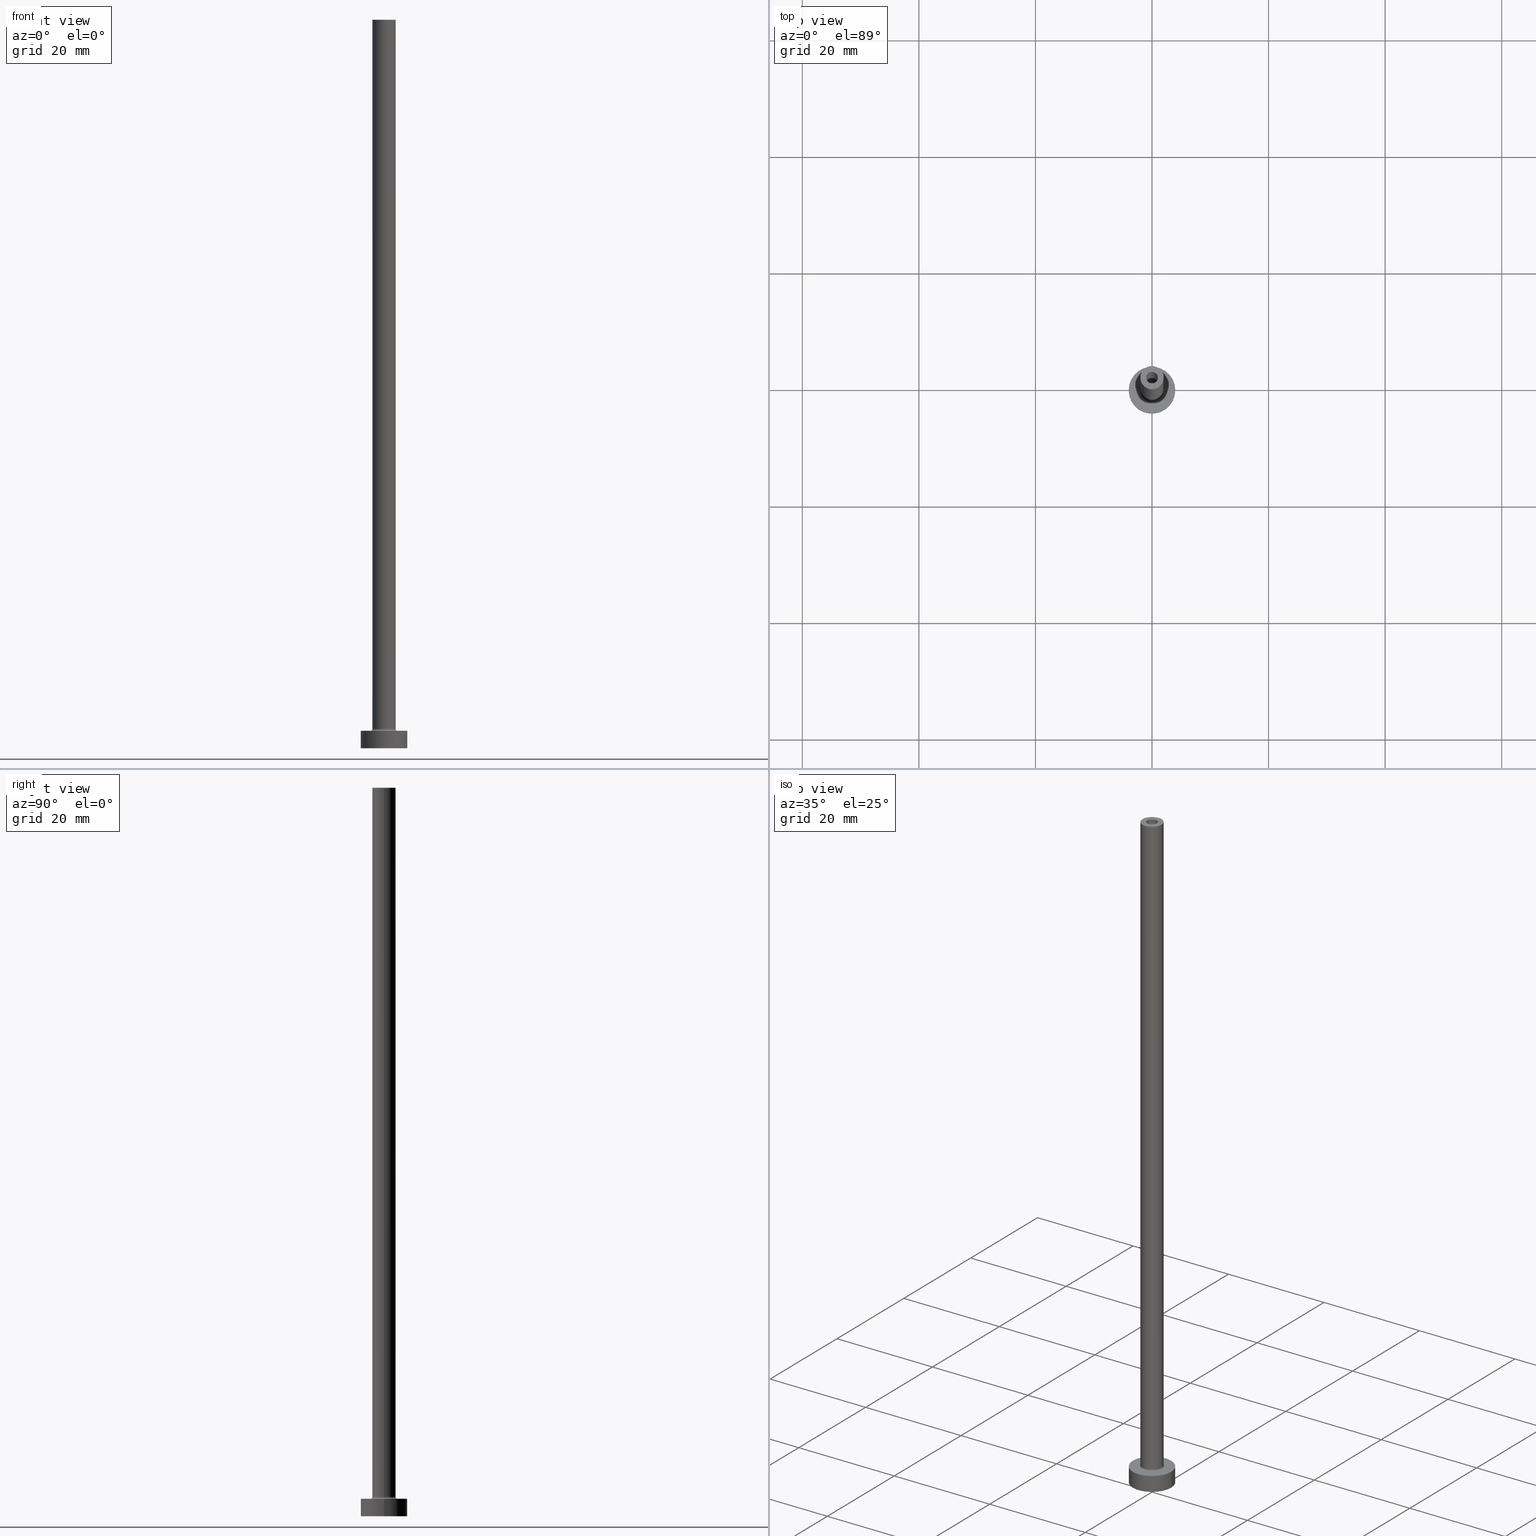
[diagram: canonical four-view strip — front | top / right | iso, engineering-drawing reading convention]
A machine part, canonical four-view strip (front | top / right | iso — engineering-drawing reading convention). The complete STEP part file that produces these views, byte-faithful:
ISO-10303-21;
HEADER;
FILE_DESCRIPTION (( 'STEP AP203' ),
    '1' );
FILE_NAME ('c4f0.STEP',
    '2023-02-13T18:18:41',
    ( '' ),
    ( '' ),
    'SwSTEP 2.0',
    'SolidWorks 2019',
    '' );
FILE_SCHEMA (( 'CONFIG_CONTROL_DESIGN' ));
ENDSEC;

DATA;
#1 = DIRECTION ( 'NONE',  ( 0.000000000000000000, 0.000000000000000000, 1.000000000000000000 ) ) ;
#2 = COORDINATED_UNIVERSAL_TIME_OFFSET ( 1, 0, .AHEAD. ) ;
#3 = DIRECTION ( 'NONE',  ( 1.000000000000000000, 0.000000000000000000, 0.000000000000000000 ) ) ;
#4 = CARTESIAN_POINT ( 'NONE',  ( 0.000000000000000000, 0.000000000000000000, 0.000000000000000000 ) ) ;
#5 = EDGE_LOOP ( 'NONE', ( #7, #171 ) ) ;
#6 = CYLINDRICAL_SURFACE ( 'NONE', #156, 1.000000000000000000 ) ;
#7 = ORIENTED_EDGE ( 'NONE', *, *, #186, .T. ) ;
#8 = ADVANCED_FACE ( 'NONE', ( #84 ), #121, .T. ) ;
#9 = CARTESIAN_POINT ( 'NONE',  ( 4.000000000000000000, 4.898587196589412829E-16, 0.000000000000000000 ) ) ;
#10 = VERTEX_POINT ( 'NONE', #453 ) ;
#11 = CIRCLE ( 'NONE', #270, 4.000000000000000000 ) ;
#12 = AXIS2_PLACEMENT_3D ( 'NONE', #13, #209, #113 ) ;
#13 = CARTESIAN_POINT ( 'NONE',  ( 0.000000000000000000, 0.000000000000000000, 3.000000000000000000 ) ) ;
#14 = ORIENTED_EDGE ( 'NONE', *, *, #87, .F. ) ;
#15 = CARTESIAN_POINT ( 'NONE',  ( 0.000000000000000000, 0.000000000000000000, 0.000000000000000000 ) ) ;
#16 = EDGE_CURVE ( 'NONE', #295, #112, #86, .T. ) ;
#17 = EDGE_LOOP ( 'NONE', ( #208, #269, #273, #400 ) ) ;
#18 = VERTEX_POINT ( 'NONE', #299 ) ;
#19 = LOCAL_TIME ( 19, 18, 41.00000000000000000, #290 ) ;
#20 = DIRECTION ( 'NONE',  ( 1.000000000000000000, 0.000000000000000000, 0.000000000000000000 ) ) ;
#21 = LOCAL_TIME ( 19, 18, 41.00000000000000000, #340 ) ;
#22 = EDGE_LOOP ( 'NONE', ( #333, #118 ) ) ;
#23 = PRODUCT_RELATED_PRODUCT_CATEGORY ( 'detail', '', ( #415 ) ) ;
#24 = DIRECTION ( 'NONE',  ( 0.000000000000000000, 0.000000000000000000, 1.000000000000000000 ) ) ;
#25 = ORIENTED_EDGE ( 'NONE', *, *, #104, .F. ) ;
#26 = EDGE_CURVE ( 'NONE', #112, #82, #394, .T. ) ;
#27 =( NAMED_UNIT ( * ) SI_UNIT ( $, .STERADIAN. ) SOLID_ANGLE_UNIT ( ) );
#28 = ORIENTED_EDGE ( 'NONE', *, *, #176, .T. ) ;
#29 = DATE_TIME_ROLE ( 'classification_date' ) ;
#30 = CIRCLE ( 'NONE', #284, 1.000000000000000000 ) ;
#31 = DIRECTION ( 'NONE',  ( -0.000000000000000000, -0.000000000000000000, -1.000000000000000000 ) ) ;
#32 = ADVANCED_FACE ( 'NONE', ( #448, #190 ), #336, .F. ) ;
#33 = CARTESIAN_POINT ( 'NONE',  ( 0.000000000000000000, 0.000000000000000000, 3.000000000000000000 ) ) ;
#34 = DIRECTION ( 'NONE',  ( 0.000000000000000000, 0.000000000000000000, 1.000000000000000000 ) ) ;
#35 = CARTESIAN_POINT ( 'NONE',  ( 0.000000000000000000, 0.000000000000000000, 3.299999999999997158 ) ) ;
#36 = CARTESIAN_POINT ( 'NONE',  ( -1.149999999999999911, 0.000000000000000000, 0.000000000000000000 ) ) ;
#37 = PERSON_AND_ORGANIZATION_ROLE ( 'classification_officer' ) ;
#38 = CARTESIAN_POINT ( 'NONE',  ( -2.000000000000000000, 0.000000000000000000, 3.299999999999997158 ) ) ;
#39 = UNCERTAINTY_MEASURE_WITH_UNIT (LENGTH_MEASURE( 1.000000000000000082E-05 ), #407, 'distance_accuracy_value', 'NONE');
#40 = CARTESIAN_POINT ( 'NONE',  ( -4.000000000000000000, 0.000000000000000000, 3.000000000000000000 ) ) ;
#41 = CC_DESIGN_PERSON_AND_ORGANIZATION_ASSIGNMENT ( #264, #302, ( #227 ) ) ;
#42 = ORIENTED_EDGE ( 'NONE', *, *, #304, .F. ) ;
#43 = CIRCLE ( 'NONE', #301, 0.2999999999999999334 ) ;
#44 = EDGE_CURVE ( 'NONE', #408, #152, #253, .T. ) ;
#45 = DIRECTION ( 'NONE',  ( 0.000000000000000000, 0.000000000000000000, 1.000000000000000000 ) ) ;
#46 = VERTEX_POINT ( 'NONE', #230 ) ;
#47 = APPLICATION_CONTEXT ( 'configuration controlled 3d designs of mechanical parts and assemblies' ) ;
#48 = CARTESIAN_POINT ( 'NONE',  ( 0.000000000000000000, 0.000000000000000000, 125.0000000000000000 ) ) ;
#49 = ORIENTED_EDGE ( 'NONE', *, *, #200, .T. ) ;
#50 = CARTESIAN_POINT ( 'NONE',  ( 0.000000000000000000, 0.000000000000000000, 3.299999999999997158 ) ) ;
#51 = APPROVAL_PERSON_ORGANIZATION ( #449, #406, #283 ) ;
#52 = CARTESIAN_POINT ( 'NONE',  ( -2.000000000000000000, 0.000000000000000000, 125.0000000000000000 ) ) ;
#53 = ORIENTED_EDGE ( 'NONE', *, *, #74, .T. ) ;
#54 = ORIENTED_EDGE ( 'NONE', *, *, #335, .T. ) ;
#55 = DIRECTION ( 'NONE',  ( -1.000000000000000000, 1.224646799147353207E-16, 0.000000000000000000 ) ) ;
#56 = APPROVAL_STATUS ( 'not_yet_approved' ) ;
#57 = CIRCLE ( 'NONE', #434, 1.149999999999999911 ) ;
#58 = ADVANCED_FACE ( 'NONE', ( #63 ), #102, .F. ) ;
#59 = ORIENTED_EDGE ( 'NONE', *, *, #147, .F. ) ;
#60 = DIRECTION ( 'NONE',  ( 1.000000000000000000, 0.000000000000000000, -0.000000000000000000 ) ) ;
#61 = EDGE_LOOP ( 'NONE', ( #193, #344 ) ) ;
#62 = MECHANICAL_CONTEXT ( 'NONE', #47, 'mechanical' ) ;
#63 = FACE_OUTER_BOUND ( 'NONE', #148, .T. ) ;
#64 = EDGE_CURVE ( 'NONE', #295, #10, #446, .T. ) ;
#65 = CC_DESIGN_DATE_AND_TIME_ASSIGNMENT ( #338, #305, ( #227 ) ) ;
#66 = FACE_BOUND ( 'NONE', #140, .T. ) ;
#67 = CARTESIAN_POINT ( 'NONE',  ( 0.000000000000000000, 0.000000000000000000, 125.0000000000000000 ) ) ;
#68 = CARTESIAN_POINT ( 'NONE',  ( -1.000000000000000000, 0.000000000000000000, 90.00000000000000000 ) ) ;
#69 = DIRECTION ( 'NONE',  ( 0.000000000000000000, 0.000000000000000000, 1.000000000000000000 ) ) ;
#70 = AXIS2_PLACEMENT_3D ( 'NONE', #75, #45, #328 ) ;
#71 = CIRCLE ( 'NONE', #158, 2.000000000000000000 ) ;
#72 = DIRECTION ( 'NONE',  ( 0.000000000000000000, 0.000000000000000000, 1.000000000000000000 ) ) ;
#73 = DIRECTION ( 'NONE',  ( 1.000000000000000000, 0.000000000000000000, 0.000000000000000000 ) ) ;
#74 = EDGE_CURVE ( 'NONE', #436, #18, #348, .T. ) ;
#75 = CARTESIAN_POINT ( 'NONE',  ( 0.000000000000000000, 0.000000000000000000, 90.00000000000000000 ) ) ;
#76 = ORIENTED_EDGE ( 'NONE', *, *, #214, .F. ) ;
#77 = CALENDAR_DATE ( 2023, 13, 2 ) ;
#78 = DIRECTION ( 'NONE',  ( -1.000000000000000000, 0.000000000000000000, 0.000000000000000000 ) ) ;
#79 = VERTEX_POINT ( 'NONE', #311 ) ;
#80 = LINE ( 'NONE', #137, #460 ) ;
#81 = DIRECTION ( 'NONE',  ( -0.000000000000000000, -0.000000000000000000, -1.000000000000000000 ) ) ;
#82 = VERTEX_POINT ( 'NONE', #168 ) ;
#83 = TOROIDAL_SURFACE ( 'NONE', #197, 2.299999999999999822, 0.2999999999999999889 ) ;
#84 = FACE_OUTER_BOUND ( 'NONE', #288, .T. ) ;
#85 =( NAMED_UNIT ( * ) PLANE_ANGLE_UNIT ( ) SI_UNIT ( $, .RADIAN. ) );
#86 = LINE ( 'NONE', #370, #361 ) ;
#87 = EDGE_CURVE ( 'NONE', #46, #112, #379, .T. ) ;
#88 = CARTESIAN_POINT ( 'NONE',  ( 0.000000000000000000, 0.000000000000000000, 3.299999999999997158 ) ) ;
#89 = APPLICATION_CONTEXT ( 'configuration controlled 3d designs of mechanical parts and assemblies' ) ;
#90 = CARTESIAN_POINT ( 'NONE',  ( 0.000000000000000000, 0.000000000000000000, 125.0000000000000000 ) ) ;
#91 = FACE_OUTER_BOUND ( 'NONE', #195, .T. ) ;
#92 = ORIENTED_EDGE ( 'NONE', *, *, #356, .T. ) ;
#93 = CARTESIAN_POINT ( 'NONE',  ( 1.149999999999999911, 1.408343819019456028E-16, 90.00000000000000000 ) ) ;
#94 = DIRECTION ( 'NONE',  ( 1.000000000000000000, 0.000000000000000000, 0.000000000000000000 ) ) ;
#95 = CARTESIAN_POINT ( 'NONE',  ( 0.000000000000000000, 0.000000000000000000, 3.000000000000000000 ) ) ;
#96 = DIRECTION ( 'NONE',  ( 0.000000000000000000, 0.000000000000000000, 1.000000000000000000 ) ) ;
#97 = DIRECTION ( 'NONE',  ( 1.000000000000000000, 0.000000000000000000, 0.000000000000000000 ) ) ;
#98 = ADVANCED_FACE ( 'NONE', ( #387, #378 ), #129, .T. ) ;
#99 = DIRECTION ( 'NONE',  ( -0.000000000000000000, -0.000000000000000000, -1.000000000000000000 ) ) ;
#100 = DIRECTION ( 'NONE',  ( 0.000000000000000000, 0.000000000000000000, 1.000000000000000000 ) ) ;
#101 = AXIS2_PLACEMENT_3D ( 'NONE', #67, #1, #231 ) ;
#102 = TOROIDAL_SURFACE ( 'NONE', #159, 2.299999999999999822, 0.2999999999999999889 ) ;
#103 = DIRECTION ( 'NONE',  ( 1.000000000000000000, 0.000000000000000000, 0.000000000000000000 ) ) ;
#104 = EDGE_CURVE ( 'NONE', #46, #222, #43, .T. ) ;
#105 = DIRECTION ( 'NONE',  ( 0.000000000000000000, 0.000000000000000000, -1.000000000000000000 ) ) ;
#106 = ORIENTED_EDGE ( 'NONE', *, *, #239, .T. ) ;
#107 = MANIFOLD_SOLID_BREP ( 'Odebrat vysunut�m4', #352 ) ;
#108 = DIRECTION ( 'NONE',  ( 1.000000000000000000, 0.000000000000000000, 0.000000000000000000 ) ) ;
#109 = ORIENTED_EDGE ( 'NONE', *, *, #314, .F. ) ;
#110 = CIRCLE ( 'NONE', #12, 2.299999999999999822 ) ;
#111 = CARTESIAN_POINT ( 'NONE',  ( -1.000000000000000000, 0.000000000000000000, 125.0000000000000000 ) ) ;
#112 = VERTEX_POINT ( 'NONE', #38 ) ;
#113 = DIRECTION ( 'NONE',  ( 1.000000000000000000, 0.000000000000000000, 0.000000000000000000 ) ) ;
#114 = APPROVAL_ROLE ( '' ) ;
#115 = AXIS2_PLACEMENT_3D ( 'NONE', #318, #202, #346 ) ;
#116 = LOCAL_TIME ( 19, 18, 41.00000000000000000, #167 ) ;
#117 = CARTESIAN_POINT ( 'NONE',  ( 0.000000000000000000, 0.000000000000000000, 125.0000000000000000 ) ) ;
#118 = ORIENTED_EDGE ( 'NONE', *, *, #147, .T. ) ;
#119 = EDGE_CURVE ( 'NONE', #339, #436, #150, .T. ) ;
#120 = CARTESIAN_POINT ( 'NONE',  ( 0.000000000000000000, 0.000000000000000000, 0.000000000000000000 ) ) ;
#121 = CYLINDRICAL_SURFACE ( 'NONE', #136, 4.000000000000000000 ) ;
#122 = DIRECTION ( 'NONE',  ( 1.000000000000000000, 0.000000000000000000, 0.000000000000000000 ) ) ;
#123 = ORGANIZATION ( 'NEUR�EN�', 'NEUR�EN�', '' ) ;
#124 = CARTESIAN_POINT ( 'NONE',  ( -2.299999999999999822, 2.816687638038912056E-16, 3.299999999999997158 ) ) ;
#125 = ADVANCED_BREP_SHAPE_REPRESENTATION ( 'c4f0', ( #107, #271 ), #386 ) ;
#126 = ORIENTED_EDGE ( 'NONE', *, *, #200, .F. ) ;
#127 = DIRECTION ( 'NONE',  ( 0.000000000000000000, 0.000000000000000000, 1.000000000000000000 ) ) ;
#128 = CIRCLE ( 'NONE', #233, 4.000000000000000000 ) ;
#129 = PLANE ( 'NONE',  #234 ) ;
#130 = EDGE_CURVE ( 'NONE', #212, #18, #337, .T. ) ;
#131 = CARTESIAN_POINT ( 'NONE',  ( 0.000000000000000000, 0.000000000000000000, 3.299999999999997158 ) ) ;
#132 = CARTESIAN_POINT ( 'NONE',  ( 2.299999999999999822, 0.000000000000000000, 2.999999999999998668 ) ) ;
#133 = PERSON ( 'NEUR�EN�', 'NEUR�EN�', 'NEUR�EN�', ('NEUR�EN�'), ('NEUR�EN�'), ('NEUR�EN�') ) ;
#134 = DIRECTION ( 'NONE',  ( 0.000000000000000000, 0.000000000000000000, -1.000000000000000000 ) ) ;
#135 = AXIS2_PLACEMENT_3D ( 'NONE', #218, #141, #365 ) ;
#136 = AXIS2_PLACEMENT_3D ( 'NONE', #155, #307, #263 ) ;
#137 = CARTESIAN_POINT ( 'NONE',  ( 4.000000000000000000, 4.898587196589412829E-16, 3.000000000000000000 ) ) ;
#138 = EDGE_LOOP ( 'NONE', ( #377, #363 ) ) ;
#139 = CYLINDRICAL_SURFACE ( 'NONE', #385, 1.000000000000000000 ) ;
#140 = EDGE_LOOP ( 'NONE', ( #323, #76 ) ) ;
#141 = DIRECTION ( 'NONE',  ( -0.000000000000000000, -0.000000000000000000, -1.000000000000000000 ) ) ;
#142 = ORIENTED_EDGE ( 'NONE', *, *, #440, .T. ) ;
#143 = DIRECTION ( 'NONE',  ( 0.000000000000000000, 0.000000000000000000, 1.000000000000000000 ) ) ;
#144 = ORIENTED_EDGE ( 'NONE', *, *, #130, .T. ) ;
#145 = FACE_OUTER_BOUND ( 'NONE', #255, .T. ) ;
#146 = ORIENTED_EDGE ( 'NONE', *, *, #356, .F. ) ;
#147 = EDGE_CURVE ( 'NONE', #450, #79, #128, .T. ) ;
#148 = EDGE_LOOP ( 'NONE', ( #259, #297, #224, #25 ) ) ;
#149 = VECTOR ( 'NONE', #161, 1000.000000000000000 ) ;
#150 = CIRCLE ( 'NONE', #452, 1.149999999999999911 ) ;
#151 = CALENDAR_DATE ( 2023, 13, 2 ) ;
#152 = VERTEX_POINT ( 'NONE', #280 ) ;
#153 = VERTEX_POINT ( 'NONE', #68 ) ;
#154 = CC_DESIGN_PERSON_AND_ORGANIZATION_ASSIGNMENT ( #213, #37, ( #260 ) ) ;
#155 = CARTESIAN_POINT ( 'NONE',  ( 0.000000000000000000, 0.000000000000000000, 3.000000000000000000 ) ) ;
#156 = AXIS2_PLACEMENT_3D ( 'NONE', #291, #431, #78 ) ;
#157 = CALENDAR_DATE ( 2023, 13, 2 ) ;
#158 = AXIS2_PLACEMENT_3D ( 'NONE', #117, #24, #225 ) ;
#159 = AXIS2_PLACEMENT_3D ( 'NONE', #131, #34, #3 ) ;
#160 = CARTESIAN_POINT ( 'NONE',  ( 0.000000000000000000, 0.000000000000000000, 125.0000000000000000 ) ) ;
#161 = DIRECTION ( 'NONE',  ( 0.000000000000000000, 0.000000000000000000, -1.000000000000000000 ) ) ;
#162 = DIRECTION ( 'NONE',  ( 1.000000000000000000, 0.000000000000000000, 0.000000000000000000 ) ) ;
#163 = ADVANCED_FACE ( 'NONE', ( #313 ), #206, .T. ) ;
#164 = AXIS2_PLACEMENT_3D ( 'NONE', #50, #143, #108 ) ;
#165 = CALENDAR_DATE ( 2023, 13, 2 ) ;
#166 = CARTESIAN_POINT ( 'NONE',  ( 0.000000000000000000, 0.000000000000000000, 0.000000000000000000 ) ) ;
#167 = COORDINATED_UNIVERSAL_TIME_OFFSET ( 1, 0, .AHEAD. ) ;
#168 = CARTESIAN_POINT ( 'NONE',  ( -2.299999999999999822, 2.816687638038912056E-16, 2.999999999999998668 ) ) ;
#169 = APPROVAL_PERSON_ORGANIZATION ( #383, #198, #281 ) ;
#170 = DIRECTION ( 'NONE',  ( 1.000000000000000000, 0.000000000000000000, 0.000000000000000000 ) ) ;
#171 = ORIENTED_EDGE ( 'NONE', *, *, #249, .T. ) ;
#172 = CC_DESIGN_APPROVAL ( #198, ( #260 ) ) ;
#173 = AXIS2_PLACEMENT_3D ( 'NONE', #35, #96, #235 ) ;
#174 = FACE_OUTER_BOUND ( 'NONE', #403, .T. ) ;
#175 = ORIENTED_EDGE ( 'NONE', *, *, #74, .F. ) ;
#176 = EDGE_CURVE ( 'NONE', #188, #372, #300, .T. ) ;
#177 = FACE_OUTER_BOUND ( 'NONE', #17, .T. ) ;
#178 = ORIENTED_EDGE ( 'NONE', *, *, #44, .T. ) ;
#179 = EDGE_CURVE ( 'NONE', #153, #185, #359, .T. ) ;
#180 = CARTESIAN_POINT ( 'NONE',  ( 0.000000000000000000, 0.000000000000000000, 93.25269119345810509 ) ) ;
#181 = ORIENTED_EDGE ( 'NONE', *, *, #335, .F. ) ;
#182 = CC_DESIGN_APPROVAL ( #279, ( #227 ) ) ;
#183 = AXIS2_PLACEMENT_3D ( 'NONE', #120, #266, #410 ) ;
#184 = FACE_OUTER_BOUND ( 'NONE', #438, .T. ) ;
#185 = VERTEX_POINT ( 'NONE', #425 ) ;
#186 = EDGE_CURVE ( 'NONE', #222, #82, #211, .T. ) ;
#187 = FACE_OUTER_BOUND ( 'NONE', #61, .T. ) ;
#188 = VERTEX_POINT ( 'NONE', #316 ) ;
#189 = CARTESIAN_POINT ( 'NONE',  ( 0.000000000000000000, 0.000000000000000000, 0.000000000000000000 ) ) ;
#190 = FACE_OUTER_BOUND ( 'NONE', #390, .T. ) ;
#191 = VECTOR ( 'NONE', #244, 1000.000000000000000 ) ;
#192 = CALENDAR_DATE ( 2023, 13, 2 ) ;
#193 = ORIENTED_EDGE ( 'NONE', *, *, #119, .F. ) ;
#194 = CARTESIAN_POINT ( 'NONE',  ( 0.000000000000000000, 0.000000000000000000, 90.00000000000000000 ) ) ;
#195 = EDGE_LOOP ( 'NONE', ( #228, #53, #92, #181 ) ) ;
#196 = PERSON_AND_ORGANIZATION ( #133, #123 ) ;
#197 = AXIS2_PLACEMENT_3D ( 'NONE', #88, #411, #122 ) ;
#198 = APPROVAL ( #430, 'NEUR�EN�' ) ;
#199 = FACE_OUTER_BOUND ( 'NONE', #367, .T. ) ;
#200 = EDGE_CURVE ( 'NONE', #408, #153, #353, .T. ) ;
#201 = CARTESIAN_POINT ( 'NONE',  ( -1.000000000000000000, 0.000000000000000000, 125.0000000000000000 ) ) ;
#202 = DIRECTION ( 'NONE',  ( 0.000000000000000000, 0.000000000000000000, 1.000000000000000000 ) ) ;
#203 = AXIS2_PLACEMENT_3D ( 'NONE', #205, #238, #461 ) ;
#204 = CIRCLE ( 'NONE', #277, 4.000000000000000000 ) ;
#205 = CARTESIAN_POINT ( 'NONE',  ( 0.000000000000000000, 0.000000000000000000, 90.00000000000000000 ) ) ;
#206 = CYLINDRICAL_SURFACE ( 'NONE', #345, 4.000000000000000000 ) ;
#207 = CARTESIAN_POINT ( 'NONE',  ( 0.000000000000000000, 0.000000000000000000, 3.000000000000000000 ) ) ;
#208 = ORIENTED_EDGE ( 'NONE', *, *, #405, .F. ) ;
#209 = DIRECTION ( 'NONE',  ( -0.000000000000000000, -0.000000000000000000, -1.000000000000000000 ) ) ;
#210 = CC_DESIGN_PERSON_AND_ORGANIZATION_ASSIGNMENT ( #354, #315, ( #444 ) ) ;
#211 = CIRCLE ( 'NONE', #443, 2.299999999999999822 ) ;
#212 = VERTEX_POINT ( 'NONE', #36 ) ;
#213 = PERSON_AND_ORGANIZATION ( #133, #123 ) ;
#214 = EDGE_CURVE ( 'NONE', #152, #408, #420, .T. ) ;
#215 = DIRECTION ( 'NONE',  ( 1.000000000000000000, 0.000000000000000000, -0.000000000000000000 ) ) ;
#216 = ORIENTED_EDGE ( 'NONE', *, *, #214, .T. ) ;
#217 = FACE_OUTER_BOUND ( 'NONE', #334, .T. ) ;
#218 = CARTESIAN_POINT ( 'NONE',  ( 0.000000000000000000, 0.000000000000000000, 125.0000000000000000 ) ) ;
#219 = ORIENTED_EDGE ( 'NONE', *, *, #130, .F. ) ;
#220 = AXIS2_PLACEMENT_3D ( 'NONE', #258, #439, #60 ) ;
#221 = CARTESIAN_POINT ( 'NONE',  ( 4.000000000000000000, 4.898587196589412829E-16, 3.000000000000000000 ) ) ;
#222 = VERTEX_POINT ( 'NONE', #132 ) ;
#223 = APPLICATION_PROTOCOL_DEFINITION ( 'international standard', 'config_control_design', 1994, #89 ) ;
#224 = ORIENTED_EDGE ( 'NONE', *, *, #186, .F. ) ;
#225 = DIRECTION ( 'NONE',  ( 1.000000000000000000, 0.000000000000000000, 0.000000000000000000 ) ) ;
#226 = ORIENTED_EDGE ( 'NONE', *, *, #179, .F. ) ;
#227 = PRODUCT_DEFINITION ( 'NEZN�M�', '', #444, #275 ) ;
#228 = ORIENTED_EDGE ( 'NONE', *, *, #119, .T. ) ;
#229 = DIRECTION ( 'NONE',  ( -1.000000000000000000, 0.000000000000000000, 0.000000000000000000 ) ) ;
#230 = CARTESIAN_POINT ( 'NONE',  ( 2.000000000000000000, 2.449293598294705921E-16, 3.299999999999997158 ) ) ;
#231 = DIRECTION ( 'NONE',  ( 1.000000000000000000, 0.000000000000000000, 0.000000000000000000 ) ) ;
#232 = ADVANCED_FACE ( 'NONE', ( #66, #199 ), #310, .T. ) ;
#233 = AXIS2_PLACEMENT_3D ( 'NONE', #418, #72, #97 ) ;
#234 = AXIS2_PLACEMENT_3D ( 'NONE', #33, #69, #278 ) ;
#235 = DIRECTION ( 'NONE',  ( 1.000000000000000000, 0.000000000000000000, 0.000000000000000000 ) ) ;
#236 = PRODUCT_DEFINITION_SHAPE ( 'NONE', 'NONE',  #227 ) ;
#237 = DIRECTION ( 'NONE',  ( 0.000000000000000000, 0.000000000000000000, -1.000000000000000000 ) ) ;
#238 = DIRECTION ( 'NONE',  ( 0.000000000000000000, 0.000000000000000000, 1.000000000000000000 ) ) ;
#239 = EDGE_CURVE ( 'NONE', #372, #188, #204, .T. ) ;
#240 = SECURITY_CLASSIFICATION_LEVEL ( 'unclassified' ) ;
#241 = LOCAL_TIME ( 19, 18, 41.00000000000000000, #402 ) ;
#242 = DIRECTION ( 'NONE',  ( 0.000000000000000000, 0.000000000000000000, 1.000000000000000000 ) ) ;
#243 = AXIS2_PLACEMENT_3D ( 'NONE', #90, #272, #94 ) ;
#244 = DIRECTION ( 'NONE',  ( 0.000000000000000000, 0.000000000000000000, -1.000000000000000000 ) ) ;
#245 = CC_DESIGN_PERSON_AND_ORGANIZATION_ASSIGNMENT ( #196, #447, ( #415 ) ) ;
#246 = CARTESIAN_POINT ( 'NONE',  ( 0.000000000000000000, 0.000000000000000000, 125.0000000000000000 ) ) ;
#247 = ORIENTED_EDGE ( 'NONE', *, *, #64, .T. ) ;
#248 = APPROVAL_STATUS ( 'not_yet_approved' ) ;
#249 = EDGE_CURVE ( 'NONE', #82, #222, #110, .T. ) ;
#250 = DIRECTION ( 'NONE',  ( 0.000000000000000000, 0.000000000000000000, 1.000000000000000000 ) ) ;
#251 = VECTOR ( 'NONE', #427, 1000.000000000000000 ) ;
#252 = ORIENTED_EDGE ( 'NONE', *, *, #440, .F. ) ;
#253 = CIRCLE ( 'NONE', #243, 1.000000000000000000 ) ;
#254 = FACE_BOUND ( 'NONE', #138, .T. ) ;
#255 = EDGE_LOOP ( 'NONE', ( #257, #14, #429, #416 ) ) ;
#256 = CYLINDRICAL_SURFACE ( 'NONE', #135, 2.000000000000000000 ) ;
#257 = ORIENTED_EDGE ( 'NONE', *, *, #26, .F. ) ;
#258 = CARTESIAN_POINT ( 'NONE',  ( 0.000000000000000000, 0.000000000000000000, 90.00000000000000000 ) ) ;
#259 = ORIENTED_EDGE ( 'NONE', *, *, #267, .F. ) ;
#260 = SECURITY_CLASSIFICATION ( '', '', #240 ) ;
#261 = VECTOR ( 'NONE', #237, 1000.000000000000000 ) ;
#262 = PLANE ( 'NONE',  #220 ) ;
#263 = DIRECTION ( 'NONE',  ( -1.000000000000000000, 0.000000000000000000, 0.000000000000000000 ) ) ;
#264 = PERSON_AND_ORGANIZATION ( #133, #123 ) ;
#265 = CC_DESIGN_DATE_AND_TIME_ASSIGNMENT ( #317, #29, ( #260 ) ) ;
#266 = DIRECTION ( 'NONE',  ( 0.000000000000000000, 0.000000000000000000, 1.000000000000000000 ) ) ;
#267 = EDGE_CURVE ( 'NONE', #112, #46, #392, .T. ) ;
#268 = DIRECTION ( 'NONE',  ( 0.000000000000000000, 0.000000000000000000, 1.000000000000000000 ) ) ;
#269 = ORIENTED_EDGE ( 'NONE', *, *, #64, .F. ) ;
#270 = AXIS2_PLACEMENT_3D ( 'NONE', #207, #250, #103 ) ;
#271 = AXIS2_PLACEMENT_3D ( 'NONE', #189, #409, #20 ) ;
#272 = DIRECTION ( 'NONE',  ( 0.000000000000000000, 0.000000000000000000, 1.000000000000000000 ) ) ;
#273 = ORIENTED_EDGE ( 'NONE', *, *, #16, .T. ) ;
#274 = ADVANCED_FACE ( 'NONE', ( #177 ), #256, .T. ) ;
#275 = DESIGN_CONTEXT ( 'detailed design', #89, 'design' ) ;
#276 = CARTESIAN_POINT ( 'NONE',  ( 2.299999999999999822, 0.000000000000000000, 3.299999999999997158 ) ) ;
#277 = AXIS2_PLACEMENT_3D ( 'NONE', #15, #393, #170 ) ;
#278 = DIRECTION ( 'NONE',  ( 1.000000000000000000, 0.000000000000000000, -0.000000000000000000 ) ) ;
#279 = APPROVAL ( #56, 'NEUR�EN�' ) ;
#280 = CARTESIAN_POINT ( 'NONE',  ( 1.000000000000000000, 1.224646799147353207E-16, 125.0000000000000000 ) ) ;
#281 = APPROVAL_ROLE ( '' ) ;
#282 = DIRECTION ( 'NONE',  ( -0.000000000000000000, -0.000000000000000000, -1.000000000000000000 ) ) ;
#283 = APPROVAL_ROLE ( '' ) ;
#284 = AXIS2_PLACEMENT_3D ( 'NONE', #194, #268, #374 ) ;
#285 = DIRECTION ( 'NONE',  ( -0.000000000000000000, -0.000000000000000000, -1.000000000000000000 ) ) ;
#286 = DATE_AND_TIME ( #165, #19 ) ;
#287 = LINE ( 'NONE', #437, #251 ) ;
#288 = EDGE_LOOP ( 'NONE', ( #42, #109, #326, #28 ) ) ;
#289 = EDGE_CURVE ( 'NONE', #152, #185, #324, .T. ) ;
#290 = COORDINATED_UNIVERSAL_TIME_OFFSET ( 1, 0, .AHEAD. ) ;
#291 = CARTESIAN_POINT ( 'NONE',  ( 0.000000000000000000, 0.000000000000000000, 125.0000000000000000 ) ) ;
#292 = ORIENTED_EDGE ( 'NONE', *, *, #421, .F. ) ;
#293 = CARTESIAN_POINT ( 'NONE',  ( 2.000000000000000000, 2.449293598294705921E-16, 125.0000000000000000 ) ) ;
#294 = LINE ( 'NONE', #40, #329 ) ;
#295 = VERTEX_POINT ( 'NONE', #52 ) ;
#296 = DATE_AND_TIME ( #151, #21 ) ;
#297 = ORIENTED_EDGE ( 'NONE', *, *, #26, .T. ) ;
#298 = CARTESIAN_POINT ( 'NONE',  ( 0.000000000000000000, 0.000000000000000000, 93.25269119345810509 ) ) ;
#299 = CARTESIAN_POINT ( 'NONE',  ( 1.149999999999999911, 1.408343819019456028E-16, 0.000000000000000000 ) ) ;
#300 = CIRCLE ( 'NONE', #115, 4.000000000000000000 ) ;
#301 = AXIS2_PLACEMENT_3D ( 'NONE', #276, #422, #134 ) ;
#302 = PERSON_AND_ORGANIZATION_ROLE ( 'creator' ) ;
#303 = DIRECTION ( 'NONE',  ( 1.224646799147353207E-16, 1.000000000000000000, -0.000000000000000000 ) ) ;
#304 = EDGE_CURVE ( 'NONE', #450, #372, #80, .T. ) ;
#305 = DATE_TIME_ROLE ( 'creation_date' ) ;
#306 = ORIENTED_EDGE ( 'NONE', *, *, #304, .T. ) ;
#307 = DIRECTION ( 'NONE',  ( -0.000000000000000000, -0.000000000000000000, -1.000000000000000000 ) ) ;
#308 = LOCAL_TIME ( 19, 18, 41.00000000000000000, #2 ) ;
#309 = ORIENTED_EDGE ( 'NONE', *, *, #381, .T. ) ;
#310 = PLANE ( 'NONE',  #414 ) ;
#311 = CARTESIAN_POINT ( 'NONE',  ( -4.000000000000000000, 0.000000000000000000, 3.000000000000000000 ) ) ;
#312 = AXIS2_PLACEMENT_3D ( 'NONE', #48, #397, #332 ) ;
#313 = FACE_OUTER_BOUND ( 'NONE', #358, .T. ) ;
#314 = EDGE_CURVE ( 'NONE', #79, #450, #11, .T. ) ;
#315 = PERSON_AND_ORGANIZATION_ROLE ( 'design_supplier' ) ;
#316 = CARTESIAN_POINT ( 'NONE',  ( -4.000000000000000000, 0.000000000000000000, 0.000000000000000000 ) ) ;
#317 = DATE_AND_TIME ( #77, #116 ) ;
#318 = CARTESIAN_POINT ( 'NONE',  ( 0.000000000000000000, 0.000000000000000000, 0.000000000000000000 ) ) ;
#319 = PERSON_AND_ORGANIZATION_ROLE ( 'creator' ) ;
#320 = AXIS2_PLACEMENT_3D ( 'NONE', #298, #442, #229 ) ;
#321 = EDGE_CURVE ( 'NONE', #79, #188, #294, .T. ) ;
#322 = DIRECTION ( 'NONE',  ( -1.000000000000000000, 0.000000000000000000, 0.000000000000000000 ) ) ;
#323 = ORIENTED_EDGE ( 'NONE', *, *, #44, .F. ) ;
#324 = LINE ( 'NONE', #399, #191 ) ;
#325 = LINE ( 'NONE', #293, #426 ) ;
#326 = ORIENTED_EDGE ( 'NONE', *, *, #321, .T. ) ;
#327 = CC_DESIGN_PERSON_AND_ORGANIZATION_ASSIGNMENT ( #455, #319, ( #444 ) ) ;
#328 = DIRECTION ( 'NONE',  ( 1.000000000000000000, 0.000000000000000000, 0.000000000000000000 ) ) ;
#329 = VECTOR ( 'NONE', #81, 1000.000000000000000 ) ;
#330 = CC_DESIGN_APPROVAL ( #406, ( #444 ) ) ;
#331 = AXIS2_PLACEMENT_3D ( 'NONE', #124, #303, #55 ) ;
#332 = DIRECTION ( 'NONE',  ( -1.000000000000000000, 0.000000000000000000, 0.000000000000000000 ) ) ;
#333 = ORIENTED_EDGE ( 'NONE', *, *, #314, .T. ) ;
#334 = EDGE_LOOP ( 'NONE', ( #445, #216, #49, #292 ) ) ;
#335 = EDGE_CURVE ( 'NONE', #339, #212, #287, .T. ) ;
#336 = PLANE ( 'NONE',  #183 ) ;
#337 = CIRCLE ( 'NONE', #373, 1.149999999999999911 ) ;
#338 = DATE_AND_TIME ( #192, #241 ) ;
#339 = VERTEX_POINT ( 'NONE', #360 ) ;
#340 = COORDINATED_UNIVERSAL_TIME_OFFSET ( 1, 0, .AHEAD. ) ;
#341 = ORIENTED_EDGE ( 'NONE', *, *, #321, .F. ) ;
#342 = PERSON_AND_ORGANIZATION ( #133, #123 ) ;
#343 = ADVANCED_FACE ( 'NONE', ( #184 ), #362, .T. ) ;
#344 = ORIENTED_EDGE ( 'NONE', *, *, #381, .F. ) ;
#345 = AXIS2_PLACEMENT_3D ( 'NONE', #355, #423, #380 ) ;
#346 = DIRECTION ( 'NONE',  ( 1.000000000000000000, 0.000000000000000000, 0.000000000000000000 ) ) ;
#347 = CARTESIAN_POINT ( 'NONE',  ( 0.000000000000000000, 0.000000000000000000, 90.00000000000000000 ) ) ;
#348 = LINE ( 'NONE', #459, #261 ) ;
#349 = ADVANCED_FACE ( 'NONE', ( #217 ), #139, .F. ) ;
#350 = APPROVAL_DATE_TIME ( #286, #406 ) ;
#351 = AXIS2_PLACEMENT_3D ( 'NONE', #180, #105, #389 ) ;
#352 = CLOSED_SHELL ( 'NONE', ( #396, #458, #58, #343, #163, #8, #98, #32, #274, #232, #433, #369, #413, #349 ) ) ;
#353 = LINE ( 'NONE', #201, #149 ) ;
#354 = PERSON_AND_ORGANIZATION ( #133, #123 ) ;
#355 = CARTESIAN_POINT ( 'NONE',  ( 0.000000000000000000, 0.000000000000000000, 3.000000000000000000 ) ) ;
#356 = EDGE_CURVE ( 'NONE', #18, #212, #57, .T. ) ;
#357 = DIRECTION ( 'NONE',  ( 0.000000000000000000, 0.000000000000000000, -1.000000000000000000 ) ) ;
#358 = EDGE_LOOP ( 'NONE', ( #59, #306, #106, #341 ) ) ;
#359 = CIRCLE ( 'NONE', #203, 1.000000000000000000 ) ;
#360 = CARTESIAN_POINT ( 'NONE',  ( -1.149999999999999911, 0.000000000000000000, 90.00000000000000000 ) ) ;
#361 = VECTOR ( 'NONE', #31, 1000.000000000000000 ) ;
#362 = CYLINDRICAL_SURFACE ( 'NONE', #312, 2.000000000000000000 ) ;
#363 = ORIENTED_EDGE ( 'NONE', *, *, #421, .T. ) ;
#364 = FACE_OUTER_BOUND ( 'NONE', #456, .T. ) ;
#365 = DIRECTION ( 'NONE',  ( -1.000000000000000000, 0.000000000000000000, 0.000000000000000000 ) ) ;
#366 = CIRCLE ( 'NONE', #70, 1.149999999999999911 ) ;
#367 = EDGE_LOOP ( 'NONE', ( #247, #142 ) ) ;
#368 = ORIENTED_EDGE ( 'NONE', *, *, #289, .T. ) ;
#369 = ADVANCED_FACE ( 'NONE', ( #364 ), #428, .F. ) ;
#370 = CARTESIAN_POINT ( 'NONE',  ( -2.000000000000000000, 0.000000000000000000, 125.0000000000000000 ) ) ;
#371 = CYLINDRICAL_SURFACE ( 'NONE', #320, 1.149999999999999911 ) ;
#372 = VERTEX_POINT ( 'NONE', #9 ) ;
#373 = AXIS2_PLACEMENT_3D ( 'NONE', #166, #282, #382 ) ;
#374 = DIRECTION ( 'NONE',  ( 1.000000000000000000, 0.000000000000000000, 0.000000000000000000 ) ) ;
#375 = ORIENTED_EDGE ( 'NONE', *, *, #16, .F. ) ;
#376 = APPLICATION_PROTOCOL_DEFINITION ( 'international standard', 'config_control_design', 1994, #47 ) ;
#377 = ORIENTED_EDGE ( 'NONE', *, *, #179, .T. ) ;
#378 = FACE_OUTER_BOUND ( 'NONE', #22, .T. ) ;
#379 = CIRCLE ( 'NONE', #173, 2.000000000000000000 ) ;
#380 = DIRECTION ( 'NONE',  ( -1.000000000000000000, 0.000000000000000000, 0.000000000000000000 ) ) ;
#381 = EDGE_CURVE ( 'NONE', #436, #339, #366, .T. ) ;
#382 = DIRECTION ( 'NONE',  ( 1.000000000000000000, 0.000000000000000000, 0.000000000000000000 ) ) ;
#383 = PERSON_AND_ORGANIZATION ( #133, #123 ) ;
#384 = DIRECTION ( 'NONE',  ( 1.000000000000000000, 0.000000000000000000, 0.000000000000000000 ) ) ;
#385 = AXIS2_PLACEMENT_3D ( 'NONE', #246, #357, #322 ) ;
#386 =( GEOMETRIC_REPRESENTATION_CONTEXT ( 3 ) GLOBAL_UNCERTAINTY_ASSIGNED_CONTEXT ( ( #39 ) ) GLOBAL_UNIT_ASSIGNED_CONTEXT ( ( #407, #85, #27 ) ) REPRESENTATION_CONTEXT ( 'NONE', 'WORKASPACE' ) );
#387 = FACE_BOUND ( 'NONE', #5, .T. ) ;
#388 = DIRECTION ( 'NONE',  ( -0.000000000000000000, -0.000000000000000000, -1.000000000000000000 ) ) ;
#389 = DIRECTION ( 'NONE',  ( -1.000000000000000000, 0.000000000000000000, 0.000000000000000000 ) ) ;
#390 = EDGE_LOOP ( 'NONE', ( #432, #441 ) ) ;
#391 = APPROVAL_DATE_TIME ( #417, #198 ) ;
#392 = CIRCLE ( 'NONE', #164, 2.000000000000000000 ) ;
#393 = DIRECTION ( 'NONE',  ( 0.000000000000000000, 0.000000000000000000, 1.000000000000000000 ) ) ;
#394 = CIRCLE ( 'NONE', #331, 0.2999999999999999334 ) ;
#395 = ORIENTED_EDGE ( 'NONE', *, *, #405, .T. ) ;
#396 = ADVANCED_FACE ( 'NONE', ( #174 ), #6, .F. ) ;
#397 = DIRECTION ( 'NONE',  ( -0.000000000000000000, -0.000000000000000000, -1.000000000000000000 ) ) ;
#398 = ORIENTED_EDGE ( 'NONE', *, *, #87, .T. ) ;
#399 = CARTESIAN_POINT ( 'NONE',  ( 1.000000000000000000, 1.224646799147353207E-16, 125.0000000000000000 ) ) ;
#400 = ORIENTED_EDGE ( 'NONE', *, *, #267, .T. ) ;
#401 = CC_DESIGN_SECURITY_CLASSIFICATION ( #260, ( #444 ) ) ;
#402 = COORDINATED_UNIVERSAL_TIME_OFFSET ( 1, 0, .AHEAD. ) ;
#403 = EDGE_LOOP ( 'NONE', ( #178, #368, #226, #126 ) ) ;
#404 = AXIS2_PLACEMENT_3D ( 'NONE', #160, #100, #162 ) ;
#405 = EDGE_CURVE ( 'NONE', #10, #46, #325, .T. ) ;
#406 = APPROVAL ( #248, 'NEUR�EN�' ) ;
#407 =( LENGTH_UNIT ( ) NAMED_UNIT ( * ) SI_UNIT ( .MILLI., .METRE. ) );
#408 = VERTEX_POINT ( 'NONE', #111 ) ;
#409 = DIRECTION ( 'NONE',  ( 0.000000000000000000, 0.000000000000000000, 1.000000000000000000 ) ) ;
#410 = DIRECTION ( 'NONE',  ( 1.000000000000000000, 0.000000000000000000, -0.000000000000000000 ) ) ;
#411 = DIRECTION ( 'NONE',  ( 0.000000000000000000, 0.000000000000000000, 1.000000000000000000 ) ) ;
#412 = EDGE_LOOP ( 'NONE', ( #219, #146 ) ) ;
#413 = ADVANCED_FACE ( 'NONE', ( #254, #187 ), #262, .F. ) ;
#414 = AXIS2_PLACEMENT_3D ( 'NONE', #457, #127, #215 ) ;
#415 = PRODUCT ( 'c4f0', 'c4f0', '', ( #62 ) ) ;
#416 = ORIENTED_EDGE ( 'NONE', *, *, #249, .F. ) ;
#417 = DATE_AND_TIME ( #157, #308 ) ;
#418 = CARTESIAN_POINT ( 'NONE',  ( 0.000000000000000000, 0.000000000000000000, 3.000000000000000000 ) ) ;
#419 = DIRECTION ( 'NONE',  ( 1.000000000000000000, 0.000000000000000000, 0.000000000000000000 ) ) ;
#420 = CIRCLE ( 'NONE', #101, 1.000000000000000000 ) ;
#421 = EDGE_CURVE ( 'NONE', #185, #153, #30, .T. ) ;
#422 = DIRECTION ( 'NONE',  ( 0.000000000000000000, -1.000000000000000000, 0.000000000000000000 ) ) ;
#423 = DIRECTION ( 'NONE',  ( -0.000000000000000000, -0.000000000000000000, -1.000000000000000000 ) ) ;
#424 = SHAPE_DEFINITION_REPRESENTATION ( #236, #125 ) ;
#425 = CARTESIAN_POINT ( 'NONE',  ( 1.000000000000000000, 1.224646799147353207E-16, 90.00000000000000000 ) ) ;
#426 = VECTOR ( 'NONE', #435, 1000.000000000000000 ) ;
#427 = DIRECTION ( 'NONE',  ( 0.000000000000000000, 0.000000000000000000, -1.000000000000000000 ) ) ;
#428 = CYLINDRICAL_SURFACE ( 'NONE', #351, 1.149999999999999911 ) ;
#429 = ORIENTED_EDGE ( 'NONE', *, *, #104, .T. ) ;
#430 = APPROVAL_STATUS ( 'not_yet_approved' ) ;
#431 = DIRECTION ( 'NONE',  ( 0.000000000000000000, 0.000000000000000000, -1.000000000000000000 ) ) ;
#432 = ORIENTED_EDGE ( 'NONE', *, *, #176, .F. ) ;
#433 = ADVANCED_FACE ( 'NONE', ( #145 ), #83, .F. ) ;
#434 = AXIS2_PLACEMENT_3D ( 'NONE', #4, #388, #73 ) ;
#435 = DIRECTION ( 'NONE',  ( -0.000000000000000000, -0.000000000000000000, -1.000000000000000000 ) ) ;
#436 = VERTEX_POINT ( 'NONE', #93 ) ;
#437 = CARTESIAN_POINT ( 'NONE',  ( -1.149999999999999911, 0.000000000000000000, 93.25269119345810509 ) ) ;
#438 = EDGE_LOOP ( 'NONE', ( #252, #395, #398, #375 ) ) ;
#439 = DIRECTION ( 'NONE',  ( 0.000000000000000000, 0.000000000000000000, 1.000000000000000000 ) ) ;
#440 = EDGE_CURVE ( 'NONE', #10, #295, #71, .T. ) ;
#441 = ORIENTED_EDGE ( 'NONE', *, *, #239, .F. ) ;
#442 = DIRECTION ( 'NONE',  ( 0.000000000000000000, 0.000000000000000000, -1.000000000000000000 ) ) ;
#443 = AXIS2_PLACEMENT_3D ( 'NONE', #95, #99, #384 ) ;
#444 = PRODUCT_DEFINITION_FORMATION_WITH_SPECIFIED_SOURCE ( 'LIBOVOLN�', '', #415, .NOT_KNOWN. ) ;
#445 = ORIENTED_EDGE ( 'NONE', *, *, #289, .F. ) ;
#446 = CIRCLE ( 'NONE', #404, 2.000000000000000000 ) ;
#447 = PERSON_AND_ORGANIZATION_ROLE ( 'design_owner' ) ;
#448 = FACE_BOUND ( 'NONE', #412, .T. ) ;
#449 = PERSON_AND_ORGANIZATION ( #133, #123 ) ;
#450 = VERTEX_POINT ( 'NONE', #221 ) ;
#451 = APPROVAL_DATE_TIME ( #296, #279 ) ;
#452 = AXIS2_PLACEMENT_3D ( 'NONE', #347, #242, #419 ) ;
#453 = CARTESIAN_POINT ( 'NONE',  ( 2.000000000000000000, 2.449293598294705921E-16, 125.0000000000000000 ) ) ;
#454 = APPROVAL_PERSON_ORGANIZATION ( #342, #279, #114 ) ;
#455 = PERSON_AND_ORGANIZATION ( #133, #123 ) ;
#456 = EDGE_LOOP ( 'NONE', ( #175, #309, #54, #144 ) ) ;
#457 = CARTESIAN_POINT ( 'NONE',  ( 0.000000000000000000, 0.000000000000000000, 125.0000000000000000 ) ) ;
#458 = ADVANCED_FACE ( 'NONE', ( #91 ), #371, .F. ) ;
#459 = CARTESIAN_POINT ( 'NONE',  ( 1.149999999999999911, 1.408343819019456028E-16, 93.25269119345810509 ) ) ;
#460 = VECTOR ( 'NONE', #285, 1000.000000000000000 ) ;
#461 = DIRECTION ( 'NONE',  ( 1.000000000000000000, 0.000000000000000000, 0.000000000000000000 ) ) ;
ENDSEC;
END-ISO-10303-21;
